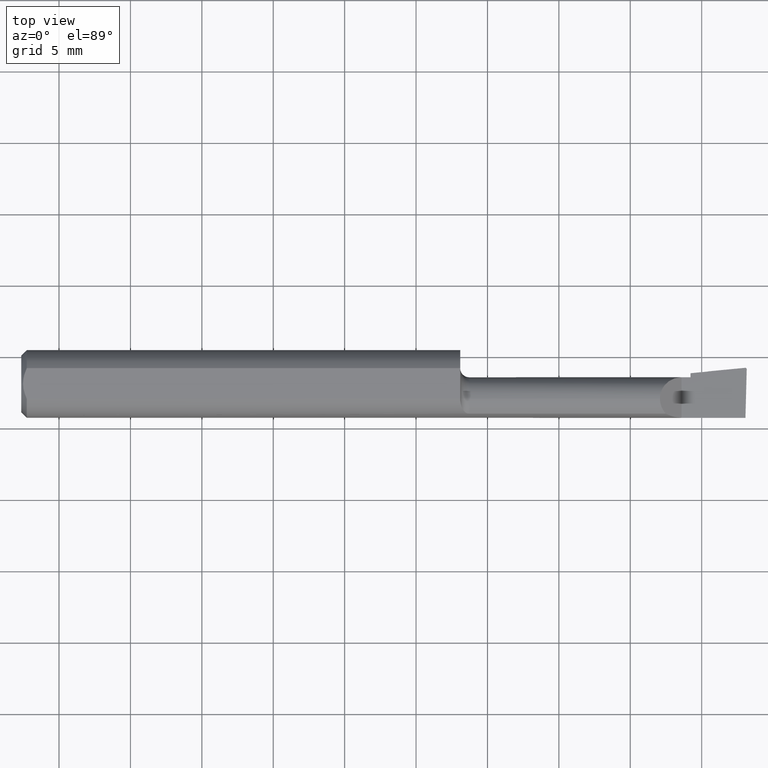
[diagram: clean part render]
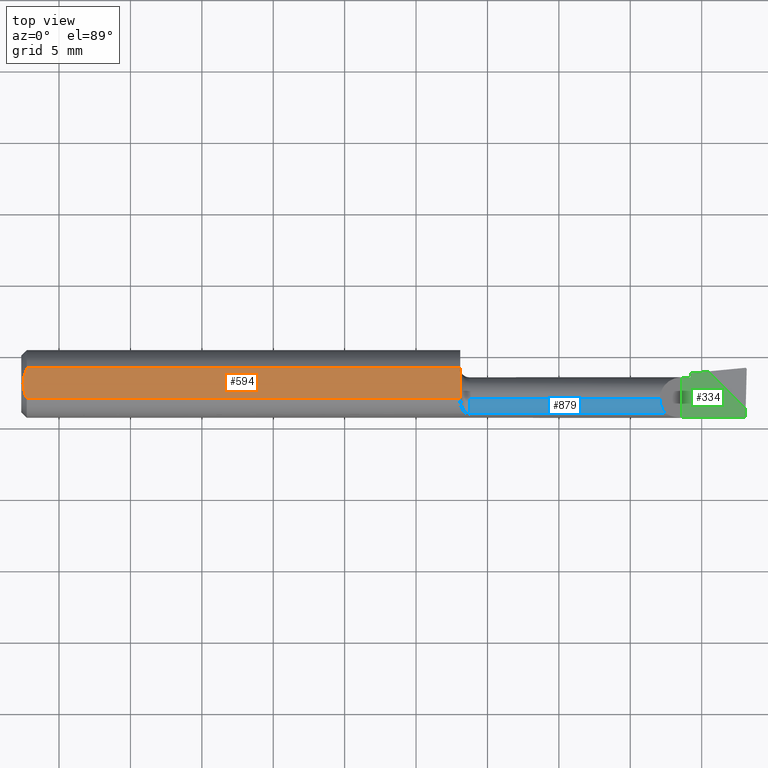
[diagram: same view with three faces highlighted in distinct colors, each labeled with its STEP entity id]
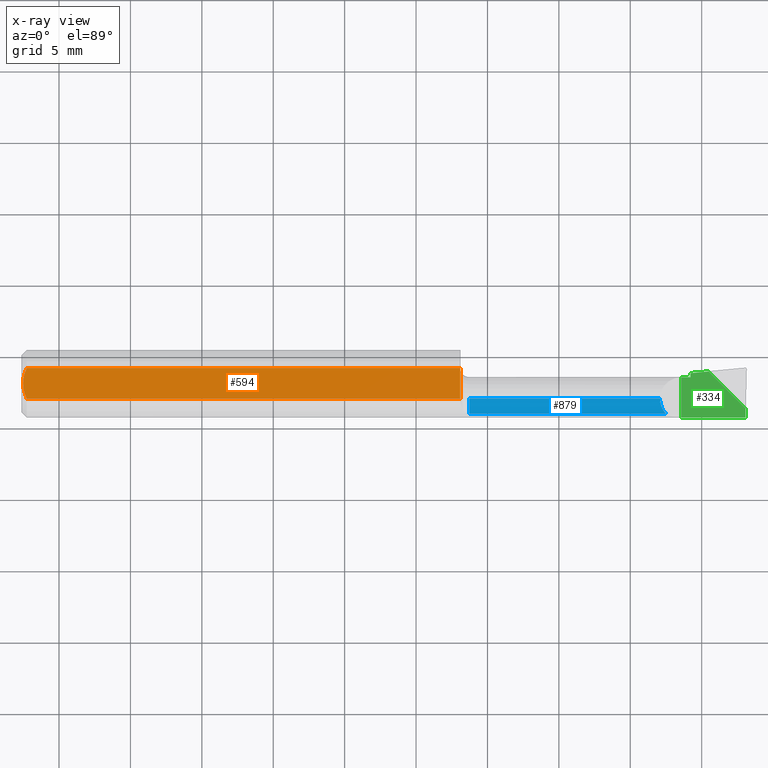
[diagram: x-ray of the same camera — body ghosted, the three highlighted faces saturated]
A machine part, top view with three faces highlighted in distinct colors.
The next image is the same camera in x-ray (body ghosted, the three faces saturated) — at least one of them is partly hidden behind the body in this view.
Their STEP definitions:

[orange] entity #594 — the highlighted planar face has unit normal (0, 0, -1).
#4 = ORIENTED_EDGE ( 'NONE', *, *, #759, .T. ) ;
#11 = CARTESIAN_POINT ( 'NONE',  ( 1.209999999999999964, 0.04793338999999998545, 0.08360000000000000764 ) ) ;
#34 = VECTOR ( 'NONE', #1073, 39.37007874015748143 ) ;
#50 = CARTESIAN_POINT ( 'NONE',  ( 0.01202468825749101675, -0.03547942025930522769, 0.08360000000000000764 ) ) ;
#74 = CARTESIAN_POINT ( 'NONE',  ( 0.004999999999999764182, 1.023804700932481731E-17, 0.08360000000000000764 ) ) ;
#82 = EDGE_CURVE ( 'NONE', #439, #894, #438, .T. ) ;
#93 = ORIENTED_EDGE ( 'NONE', *, *, #280, .T. ) ;
#136 = CARTESIAN_POINT ( 'NONE',  ( 0.004999999999999764182, 1.023804700932481731E-17, 0.08360000000000000764 ) ) ;
#137 = CARTESIAN_POINT ( 'NONE',  ( 1.210039230781082997, -0.04176504345550688391, 0.08360000000000000764 ) ) ;
#146 = ORIENTED_EDGE ( 'NONE', *, *, #163, .F. ) ;
#149 = B_SPLINE_CURVE_WITH_KNOTS ( 'NONE', 3,
 ( #433, #258, #618, #778, #352, #74 ),
 .UNSPECIFIED., .F., .F.,
 ( 4, 2, 4 ),
 ( 0.001498230153270103992, 0.002046825164355056854, 0.002595420175440009934 ),
 .UNSPECIFIED. ) ;
#163 = EDGE_CURVE ( 'NONE', #681, #798, #840, .T. ) ;
#180 = ORIENTED_EDGE ( 'NONE', *, *, #783, .T. ) ;
#204 = CARTESIAN_POINT ( 'NONE',  ( 1.210039230781082997, -0.04159999999999999809, 0.08360000000000000764 ) ) ;
#221 = CARTESIAN_POINT ( 'NONE',  ( 1.209999999999999964, 0.04209513035969836975, 0.08360000000000000764 ) ) ;
#224 = VECTOR ( 'NONE', #490, 39.37007874015748143 ) ;
#227 = CARTESIAN_POINT ( 'NONE',  ( 1.209999999999999964, -0.02623640667031312823, 0.08360000000000000764 ) ) ;
#238 = CARTESIAN_POINT ( 'NONE',  ( 1.210039230781082997, -0.04159999999999999809, 0.08360000000000000764 ) ) ;
#253 = CARTESIAN_POINT ( 'NONE',  ( 0.01499999999999997689, 0.04209513035969836975, 0.08360000000000000764 ) ) ;
#258 = CARTESIAN_POINT ( 'NONE',  ( 0.01203159747439015714, 0.03549478314559913888, 0.08360000000000000764 ) ) ;
#268 = EDGE_LOOP ( 'NONE', ( #146, #349, #991, #180, #825, #4, #93 ) ) ;
#280 = EDGE_CURVE ( 'NONE', #895, #798, #974, .T. ) ;
#283 = CARTESIAN_POINT ( 'NONE',  ( 0.000000000000000000, 0.04793338999999998545, 0.08360000000000000764 ) ) ;
#343 = CARTESIAN_POINT ( 'NONE',  ( 1.210039148586933289, -0.04209513035969836975, 0.08360000000000000764 ) ) ;
#349 = ORIENTED_EDGE ( 'NONE', *, *, #670, .F. ) ;
#352 = CARTESIAN_POINT ( 'NONE',  ( 0.004999999999999758978, 0.007340705555993276045, 0.08360000000000000764 ) ) ;
#413 = VERTEX_POINT ( 'NONE', #253 ) ;
#414 = CARTESIAN_POINT ( 'NONE',  ( 0.01499999999997129151, -0.04209513035984148444, 0.08360000000000000764 ) ) ;
#429 = EDGE_CURVE ( 'NONE', #413, #688, #149, .T. ) ;
#433 = CARTESIAN_POINT ( 'NONE',  ( 0.01499999999999997689, 0.04209513035969836975, 0.08360000000000000764 ) ) ;
#438 = LINE ( 'NONE', #706, #34 ) ;
#439 = VERTEX_POINT ( 'NONE', #343 ) ;
#468 = DIRECTION ( 'NONE',  ( -0.000000000000000000, 0.000000000000000000, -1.000000000000000000 ) ) ;
#481 = LINE ( 'NONE', #753, #929 ) ;
#487 = DIRECTION ( 'NONE',  ( 1.000000000000000000, 0.000000000000000000, 0.000000000000000000 ) ) ;
#490 = DIRECTION ( 'NONE',  ( 0.000000000000000000, -1.000000000000000000, 0.000000000000000000 ) ) ;
#495 = CARTESIAN_POINT ( 'NONE',  ( 1.210039203353751702, -0.04193008691327816673, 0.08360000000000000764 ) ) ;
#542 = PLANE ( 'NONE',  #643 ) ;
#594 = ADVANCED_FACE ( 'NONE', ( #995 ), #542, .F. ) ;
#596 = CARTESIAN_POINT ( 'NONE',  ( 1.210039148586933289, -0.04209513035969836975, 0.08360000000000000764 ) ) ;
#600 = CARTESIAN_POINT ( 'NONE',  ( 1.210039230781082997, -0.04159999999999999809, 0.08360000000000000764 ) ) ;
#618 = CARTESIAN_POINT ( 'NONE',  ( 0.009483687754783748716, 0.02856776309113263912, 0.08360000000000000764 ) ) ;
#643 = AXIS2_PLACEMENT_3D ( 'NONE', #283, #468, #1173 ) ;
#670 = EDGE_CURVE ( 'NONE', #413, #681, #481, .T. ) ;
#675 = CARTESIAN_POINT ( 'NONE',  ( 1.209999999999999964, -0.02623640667031312823, 0.08360000000000000764 ) ) ;
#681 = VERTEX_POINT ( 'NONE', #221 ) ;
#688 = VERTEX_POINT ( 'NONE', #136 ) ;
#706 = CARTESIAN_POINT ( 'NONE',  ( 2.000000000000000000, -0.04209513035969836975, 0.08360000000000000764 ) ) ;
#753 = CARTESIAN_POINT ( 'NONE',  ( 2.000000000000000000, 0.04209513035969836975, 0.08360000000000000764 ) ) ;
#759 = EDGE_CURVE ( 'NONE', #439, #895, #762, .T. ) ;
#762 = B_SPLINE_CURVE_WITH_KNOTS ( 'NONE', 3,
 ( #596, #495, #137, #600 ),
 .UNSPECIFIED., .F., .F.,
 ( 4, 4 ),
 ( 4.336808689942019662E-19, 1.257626766336317670E-05 ),
 .UNSPECIFIED. ) ;
#778 = CARTESIAN_POINT ( 'NONE',  ( 0.005976064474242441006, 0.01450833282979355383, 0.08359999999999997988 ) ) ;
#783 = EDGE_CURVE ( 'NONE', #688, #894, #1089, .T. ) ;
#798 = VERTEX_POINT ( 'NONE', #675 ) ;
#825 = ORIENTED_EDGE ( 'NONE', *, *, #82, .F. ) ;
#840 = LINE ( 'NONE', #11, #224 ) ;
#857 = CARTESIAN_POINT ( 'NONE',  ( 0.009483685532750026764, -0.02856415438847180813, 0.08359999999999997988 ) ) ;
#861 = CARTESIAN_POINT ( 'NONE',  ( 0.004999999999999754641, -0.007340015043780886983, 0.08360000000000000764 ) ) ;
#894 = VERTEX_POINT ( 'NONE', #1053 ) ;
#895 = VERTEX_POINT ( 'NONE', #238 ) ;
#922 = CARTESIAN_POINT ( 'NONE',  ( 1.209999999999999742, -0.03135762114274904394, 0.08360000000000000764 ) ) ;
#929 = VECTOR ( 'NONE', #487, 39.37007874015748143 ) ;
#974 = B_SPLINE_CURVE_WITH_KNOTS ( 'NONE', 3,
 ( #204, #1038, #922, #227 ),
 .UNSPECIFIED., .F., .F.,
 ( 4, 4 ),
 ( 1.257626766336317500E-05, 0.0004028128090563765865 ),
 .UNSPECIFIED. ) ;
#991 = ORIENTED_EDGE ( 'NONE', *, *, #429, .T. ) ;
#995 = FACE_OUTER_BOUND ( 'NONE', #268, .T. ) ;
#1038 = CARTESIAN_POINT ( 'NONE',  ( 1.210039230781082997, -0.03647878552756408932, 0.08360000000000000764 ) ) ;
#1053 = CARTESIAN_POINT ( 'NONE',  ( 0.01499999999997129151, -0.04209513035984148444, 0.08360000000000000764 ) ) ;
#1073 = DIRECTION ( 'NONE',  ( -1.000000000000000000, -0.000000000000000000, -0.000000000000000000 ) ) ;
#1089 = B_SPLINE_CURVE_WITH_KNOTS ( 'NONE', 3,
 ( #1144, #861, #1126, #857, #50, #414 ),
 .UNSPECIFIED., .F., .F.,
 ( 4, 2, 4 ),
 ( 0.002595420175440009934, 0.003143963582281759754, 0.003692506989123509140 ),
 .UNSPECIFIED. ) ;
#1126 = CARTESIAN_POINT ( 'NONE',  ( 0.005981945000908216875, -0.01453549720624413080, 0.08360000000000000764 ) ) ;
#1144 = CARTESIAN_POINT ( 'NONE',  ( 0.004999999999999764182, 1.023804700932481731E-17, 0.08360000000000000764 ) ) ;
#1173 = DIRECTION ( 'NONE',  ( -1.000000000000000000, 0.000000000000000000, 0.000000000000000000 ) ) ;

[blue] entity #879 — the highlighted cylindrical surface (edge-blend (fillet) strip) has radius 1.524 mm, axis along (-1, -0, -0).
#42 = VERTEX_POINT ( 'NONE', #701 ) ;
#47 = FACE_OUTER_BOUND ( 'NONE', #538, .T. ) ;
#55 = LINE ( 'NONE', #779, #188 ) ;
#80 = ORIENTED_EDGE ( 'NONE', *, *, #92, .T. ) ;
#83 = CARTESIAN_POINT ( 'NONE',  ( 1.760599999999999499, -0.05712598967308060716, 0.05999999999999999778 ) ) ;
#92 = EDGE_CURVE ( 'NONE', #609, #1024, #55, .T. ) ;
#151 = CARTESIAN_POINT ( 'NONE',  ( 1.234999999999999876, -0.04160000000000000503, 0.000000000000000000 ) ) ;
#188 = VECTOR ( 'NONE', #545, 39.37007874015748143 ) ;
#228 = VERTEX_POINT ( 'NONE', #483 ) ;
#244 = LINE ( 'NONE', #1166, #689 ) ;
#324 = DIRECTION ( 'NONE',  ( -1.000000000000000000, -0.000000000000000000, -0.000000000000000000 ) ) ;
#333 = CARTESIAN_POINT ( 'NONE',  ( 1.777010739067528267, -0.08283076923076923559, 0.04358926093247115358 ) ) ;
#344 = AXIS2_PLACEMENT_3D ( 'NONE', #768, #324, #683 ) ;
#418 = CIRCLE ( 'NONE', #1080, 0.06000000000000001166 ) ;
#471 = ORIENTED_EDGE ( 'NONE', *, *, #593, .F. ) ;
#483 = CARTESIAN_POINT ( 'NONE',  ( 1.760599999999999499, -0.04160000000000000503, 0.06000000000000001166 ) ) ;
#538 = EDGE_LOOP ( 'NONE', ( #471, #1066, #1063, #80 ) ) ;
#545 = DIRECTION ( 'NONE',  ( 1.000000000000000000, 0.000000000000000000, 0.000000000000000000 ) ) ;
#593 = EDGE_CURVE ( 'NONE', #228, #1024, #1070, .T. ) ;
#609 = VERTEX_POINT ( 'NONE', #912 ) ;
#683 = DIRECTION ( 'NONE',  ( 0.000000000000000000, 0.000000000000000000, 1.000000000000000000 ) ) ;
#686 = CYLINDRICAL_SURFACE ( 'NONE', #344, 0.06000000000000001166 ) ;
#689 = VECTOR ( 'NONE', #697, 39.37007874015748143 ) ;
#697 = DIRECTION ( 'NONE',  ( -1.000000000000000000, -0.000000000000000000, -0.000000000000000000 ) ) ;
#701 = CARTESIAN_POINT ( 'NONE',  ( 1.234999999999999876, -0.04160000000000000503, 0.06000000000000001166 ) ) ;
#761 = DIRECTION ( 'NONE',  ( 1.000000000000000000, 0.000000000000000000, 0.000000000000000000 ) ) ;
#768 = CARTESIAN_POINT ( 'NONE',  ( 1.209999999999999964, -0.04160000000000000503, 0.000000000000000000 ) ) ;
#779 = CARTESIAN_POINT ( 'NONE',  ( 1.527500000000000080, -0.08283076923076923559, 0.04358926093247113970 ) ) ;
#790 = EDGE_CURVE ( 'NONE', #42, #609, #418, .T. ) ;
#822 = CARTESIAN_POINT ( 'NONE',  ( 1.766341597446026368, -0.07155132897918978219, 0.05425840255397271217 ) ) ;
#879 = ADVANCED_FACE ( 'NONE', ( #47 ), #686, .T. ) ;
#912 = CARTESIAN_POINT ( 'NONE',  ( 1.234999999999999876, -0.08283076923076923559, 0.04358926093247113970 ) ) ;
#919 = CARTESIAN_POINT ( 'NONE',  ( 1.760599999999999499, -0.04160000000000000503, 0.06000000000000001166 ) ) ;
#1003 = EDGE_CURVE ( 'NONE', #228, #42, #244, .T. ) ;
#1024 = VERTEX_POINT ( 'NONE', #333 ) ;
#1035 = DIRECTION ( 'NONE',  ( 0.000000000000000000, 0.000000000000000000, -1.000000000000000000 ) ) ;
#1063 = ORIENTED_EDGE ( 'NONE', *, *, #790, .T. ) ;
#1066 = ORIENTED_EDGE ( 'NONE', *, *, #1003, .T. ) ;
#1070 =( BOUNDED_CURVE ( )  B_SPLINE_CURVE ( 3, ( #919, #83, #822, #1105 ),
 .UNSPECIFIED., .F., .T. ) 
 B_SPLINE_CURVE_WITH_KNOTS ( ( 4, 4 ),
 ( 0.000000000000000000, 0.7575994919630483215 ),
 .UNSPECIFIED. ) 
 CURVE ( )  GEOMETRIC_REPRESENTATION_ITEM ( )  RATIONAL_B_SPLINE_CURVE ( ( 1.000000000000000000, 0.9527394435546669982, 0.9527394435546669982, 1.000000000000000000 ) ) 
 REPRESENTATION_ITEM ( '' )  );
#1080 = AXIS2_PLACEMENT_3D ( 'NONE', #151, #761, #1035 ) ;
#1105 = CARTESIAN_POINT ( 'NONE',  ( 1.777010739067528267, -0.08283076923076923559, 0.04358926093247115358 ) ) ;
#1166 = CARTESIAN_POINT ( 'NONE',  ( 1.209999999999999964, -0.04160000000000000503, 0.06000000000000001166 ) ) ;

[green] entity #334 — the highlighted planar face has unit normal (0, 0, -1).
#24 = CARTESIAN_POINT ( 'NONE',  ( 1.894999999999999796, 0.03428964993925831539, 0.000000000000000000 ) ) ;
#26 = CARTESIAN_POINT ( 'NONE',  ( 1.845000000000000195, 0.02947519752938140489, -2.561107494060246767E-17 ) ) ;
#30 = VECTOR ( 'NONE', #1075, 39.37007874015748854 ) ;
#40 = VECTOR ( 'NONE', #330, 39.37007874015748143 ) ;
#60 = CARTESIAN_POINT ( 'NONE',  ( 1.820000000000000062, 0.1250000000000000000, -2.561107494060246767E-17 ) ) ;
#91 = EDGE_CURVE ( 'NONE', #193, #295, #603, .T. ) ;
#109 = CARTESIAN_POINT ( 'NONE',  ( 1.996359204888788375, -0.09360000000000003040, -1.280553747030123384E-17 ) ) ;
#124 = ORIENTED_EDGE ( 'NONE', *, *, #243, .T. ) ;
#141 = ORIENTED_EDGE ( 'NONE', *, *, #1178, .F. ) ;
#150 = ORIENTED_EDGE ( 'NONE', *, *, #394, .F. ) ;
#156 = DIRECTION ( 'NONE',  ( 1.000000000000000000, 0.000000000000000000, 0.000000000000000000 ) ) ;
#161 = LINE ( 'NONE', #454, #732 ) ;
#183 = EDGE_CURVE ( 'NONE', #295, #242, #658, .T. ) ;
#193 = VERTEX_POINT ( 'NONE', #756 ) ;
#210 = CARTESIAN_POINT ( 'NONE',  ( 1.845000000000000195, 0.1250000000000000000, -2.561107494060246767E-17 ) ) ;
#239 = VECTOR ( 'NONE', #554, 39.37007874015748143 ) ;
#242 = VERTEX_POINT ( 'NONE', #26 ) ;
#243 = EDGE_CURVE ( 'NONE', #728, #242, #378, .T. ) ;
#246 = LINE ( 'NONE', #888, #40 ) ;
#260 = ORIENTED_EDGE ( 'NONE', *, *, #507, .T. ) ;
#295 = VERTEX_POINT ( 'NONE', #818 ) ;
#330 = DIRECTION ( 'NONE',  ( -0.000000000000000000, 1.000000000000000000, -0.000000000000000000 ) ) ;
#334 = ADVANCED_FACE ( 'NONE', ( #516 ), #584, .F. ) ;
#345 = ORIENTED_EDGE ( 'NONE', *, *, #91, .F. ) ;
#378 = LINE ( 'NONE', #393, #765 ) ;
#393 = CARTESIAN_POINT ( 'NONE',  ( 1.829343156003384818, 0.02796761492317000053, -2.561107494060246767E-17 ) ) ;
#394 = EDGE_CURVE ( 'NONE', #695, #193, #246, .T. ) ;
#454 = CARTESIAN_POINT ( 'NONE',  ( 2.001999756263820096, 0.1201983780953112257, -2.561107494060246767E-17 ) ) ;
#459 = LINE ( 'NONE', #716, #239 ) ;
#507 = EDGE_CURVE ( 'NONE', #1152, #639, #161, .T. ) ;
#516 = FACE_OUTER_BOUND ( 'NONE', #1169, .T. ) ;
#521 = CARTESIAN_POINT ( 'NONE',  ( 2.000000000000000000, -0.07071035006074065377, 0.000000000000000000 ) ) ;
#527 = DIRECTION ( 'NONE',  ( -1.000000000000000000, 0.000000000000000000, 0.000000000000000000 ) ) ;
#554 = DIRECTION ( 'NONE',  ( -1.000000000000000000, -0.000000000000000000, -0.000000000000000000 ) ) ;
#556 = DIRECTION ( 'NONE',  ( 0.02637339639455558299, 0.9996521614854917415, 0.000000000000000000 ) ) ;
#574 = CARTESIAN_POINT ( 'NONE',  ( 1.997041154708133925, -0.06775150476887450979, 0.000000000000000000 ) ) ;
#584 = PLANE ( 'NONE',  #873 ) ;
#603 = LINE ( 'NONE', #983, #690 ) ;
#639 = VERTEX_POINT ( 'NONE', #574 ) ;
#658 = LINE ( 'NONE', #210, #975 ) ;
#690 = VECTOR ( 'NONE', #156, 39.37007874015748143 ) ;
#693 = DIRECTION ( 'NONE',  ( -0.000000000000000000, 0.000000000000000000, -1.000000000000000000 ) ) ;
#695 = VERTEX_POINT ( 'NONE', #1034 ) ;
#716 = CARTESIAN_POINT ( 'NONE',  ( 2.000000000000000000, -0.09360000000000001652, -2.561107494060246767E-17 ) ) ;
#728 = VERTEX_POINT ( 'NONE', #24 ) ;
#732 = VECTOR ( 'NONE', #556, 39.37007874015748143 ) ;
#748 = DIRECTION ( 'NONE',  ( 0.000000000000000000, 1.000000000000000000, 0.000000000000000000 ) ) ;
#756 = CARTESIAN_POINT ( 'NONE',  ( 1.820000000000000062, 0.01839999999999999969, -2.561107494060246767E-17 ) ) ;
#765 = VECTOR ( 'NONE', #1017, 39.37007874015748143 ) ;
#818 = CARTESIAN_POINT ( 'NONE',  ( 1.845000000000000195, 0.01839999999999999969, -2.561107494060246767E-17 ) ) ;
#873 = AXIS2_PLACEMENT_3D ( 'NONE', #60, #693, #527 ) ;
#888 = CARTESIAN_POINT ( 'NONE',  ( 1.820000000000000062, 0.1250000000000000000, -2.561107494060246767E-17 ) ) ;
#953 = ORIENTED_EDGE ( 'NONE', *, *, #183, .F. ) ;
#969 = EDGE_CURVE ( 'NONE', #728, #639, #1058, .T. ) ;
#975 = VECTOR ( 'NONE', #748, 39.37007874015748143 ) ;
#983 = CARTESIAN_POINT ( 'NONE',  ( 1.209999999999999964, 0.01839999999999999969, -2.561107494060246767E-17 ) ) ;
#1017 = DIRECTION ( 'NONE',  ( -0.9953961983671787417, -0.09584575252022448089, 0.000000000000000000 ) ) ;
#1034 = CARTESIAN_POINT ( 'NONE',  ( 1.820000000000000062, -0.09360000000000001652, -2.561107494060246767E-17 ) ) ;
#1058 = LINE ( 'NONE', #521, #30 ) ;
#1075 = DIRECTION ( 'NONE',  ( 0.7071067811865512365, -0.7071067811865436870, -0.000000000000000000 ) ) ;
#1152 = VERTEX_POINT ( 'NONE', #109 ) ;
#1165 = ORIENTED_EDGE ( 'NONE', *, *, #969, .F. ) ;
#1169 = EDGE_LOOP ( 'NONE', ( #260, #1165, #124, #953, #345, #150, #141 ) ) ;
#1178 = EDGE_CURVE ( 'NONE', #1152, #695, #459, .T. ) ;